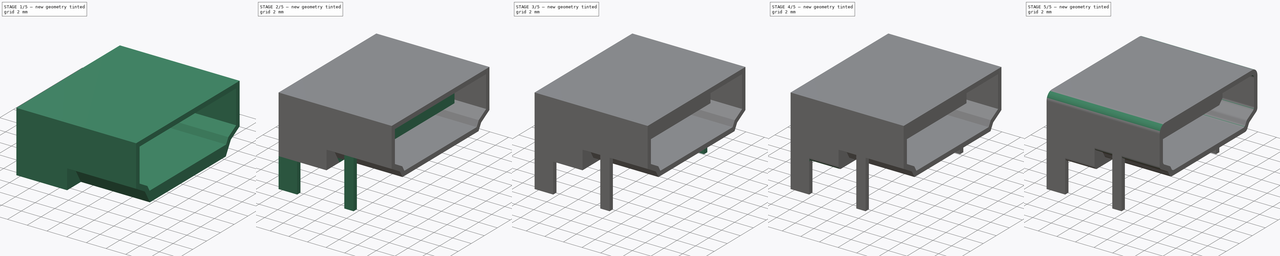
[diagram: build sequence overview — one tinted view per stage of 5, left to right]
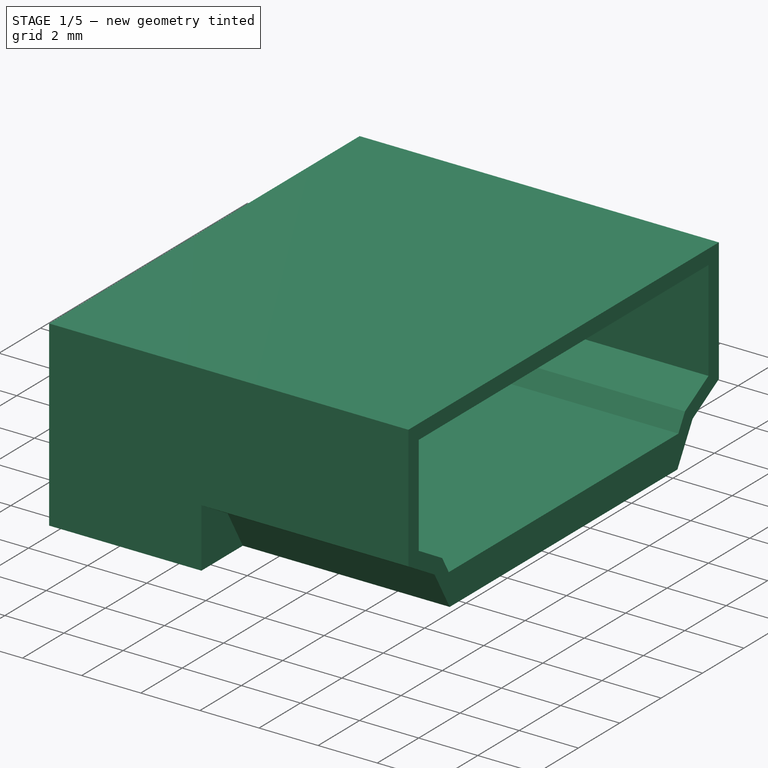
[diagram: stage 1 of 5 — iso view after this stage's code; geometry added in this stage tinted green]
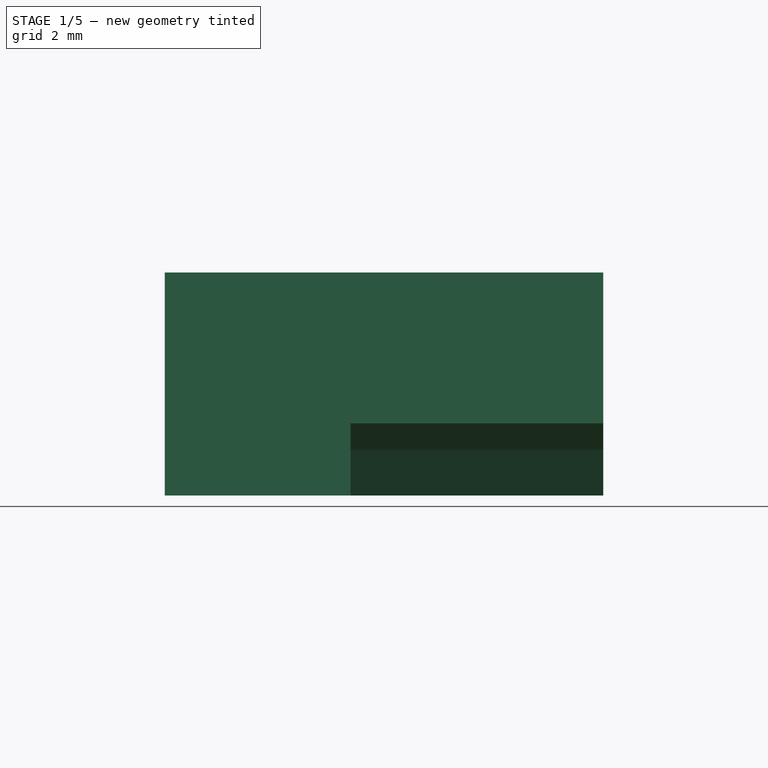
[diagram: stage 1 of 5 — front view after this stage's code; geometry added in this stage tinted green]
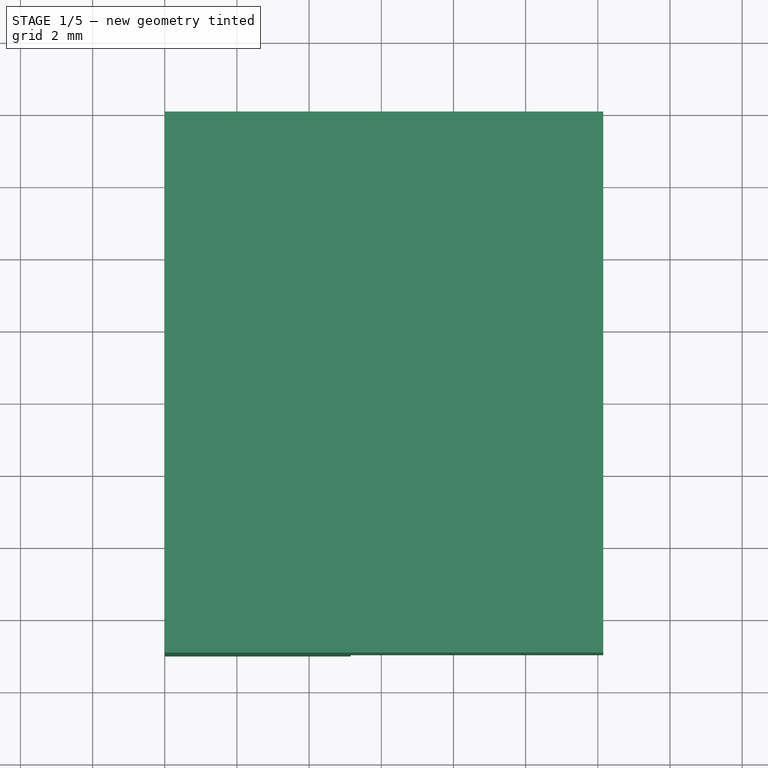
[diagram: stage 1 of 5 — top view after this stage's code; geometry added in this stage tinted green]
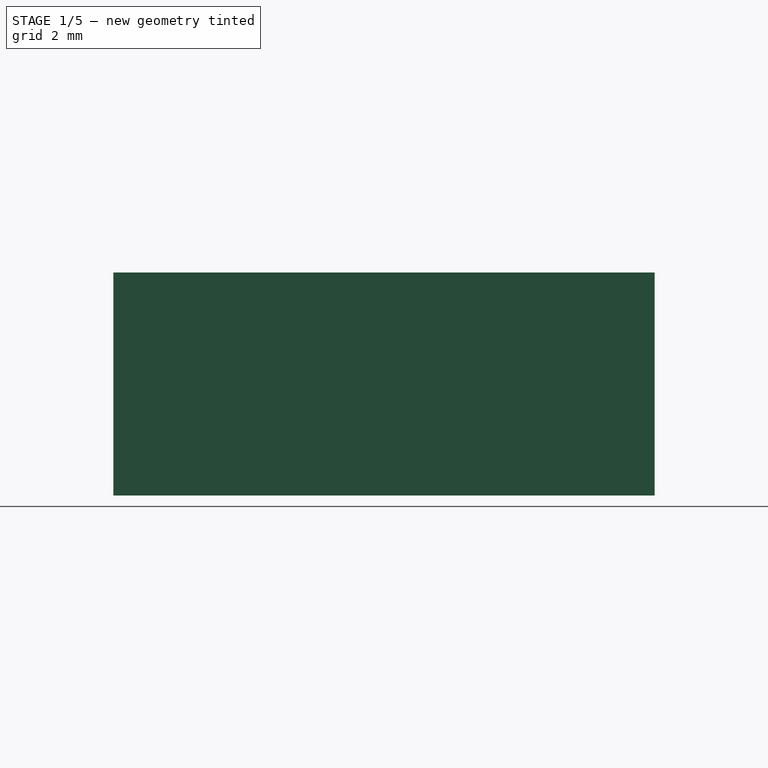
[diagram: stage 1 of 5 — right view after this stage's code; geometry added in this stage tinted green]
FCSTD DOCUMENT  (FreeCAD 0.14R3702 (Git))
Label: hdmi-connector
License: CC-BY 3.0
LicenseURL: http://creativecommons.org/licenses/by/3.0/
objects: Sketcher::SketchObject×10, PartDesign::Pad×5, PartDesign::Pocket×5, PartDesign::Fillet×4, PartDesign::LinearPattern×2, App::DocumentObjectGroup×2, Part::MultiFuse×1, PartDesign::Chamfer×1
note: 38 computed .brp shape members not serialized (recipe doc carries the construction recipe); baked Part::Feature solids carry a one-line shape summary decoded from their .brp

FEATURE [Sketcher::SketchObject] Sketch
  sketch-geometry (4):
    g0: LineSegment StartX=0 StartY=0 StartZ=0 EndX=12.15 EndY=0 EndZ=0
    g1: LineSegment StartX=12.15 StartY=0 StartZ=0 EndX=12.15 EndY=-15 EndZ=0
    g2: LineSegment StartX=12.15 StartY=-15 StartZ=0 EndX=0 EndY=-15 EndZ=0
    g3: LineSegment StartX=0 StartY=-15 StartZ=0 EndX=0 EndY=0 EndZ=0
  constraints (11):
    c: Coincident(g0,g1)
    c: Coincident(g1,g2)
    c: Coincident(g2,g3)
    c: Coincident(g3,g0)
    c: Horizontal(g0)
    c: Horizontal(g2)
    c: Vertical(g1)
    c: Vertical(g3)
    c: Coincident(g0,g-1)
    c: DistanceX(g-1,g0) = 12.15
    c: DistanceY(g0,g1) = -15
FEATURE [PartDesign::Pad] Pad
  Length = 6.18
  Length2 = 100
  Sketch = -> Sketch
  Type = 0
FEATURE [Sketcher::SketchObject] Sketch001
  Placement = pos=(12.15,0,0) rot=(0.57735,0.57735,0.57735;2.0944rad)
  Support = -> Pad [Face2]
  sketch-geometry (4):
    g0: LineSegment StartX=-2 StartY=0 StartZ=0 EndX=-1.26795 EndY=1.26795 EndZ=0
    g1: LineSegment StartX=-1.26795 StartY=1.26795 StartZ=0 EndX=0 EndY=2 EndZ=0
    g2: LineSegment StartX=0 StartY=2 StartZ=0 EndX=0 EndY=0 EndZ=0
    g3: LineSegment StartX=0 StartY=0 StartZ=0 EndX=-2 EndY=0 EndZ=0
  constraints (11):
    c: PointOnObject(g0,g-1)
    c: Coincident(g0,g1)
    c: Coincident(g1,g2)
    c: Coincident(g2,g-1)
    c: Vertical(g2)
    c: Coincident(g2,g3)
    c: Coincident(g3,g0)
    c: Angle(g3,g0) = 1.0472
    c: DistanceY(g-1,g1) = 2
    c: Angle(g1,g2) = 1.0472
    c: Equal(g0,g1)
FEATURE [PartDesign::Pocket] Pocket
  Length = 7
  Sketch = -> Sketch001
  Type = 0
FEATURE [Sketcher::SketchObject] Sketch002
  ExternalGeometry = -> [Pocket]
  Placement = pos=(12.15,0,0) rot=(0.57735,0.57735,0.57735;2.0944rad)
  Support = -> Pocket [Face5]
  sketch-geometry (4):
    g0: LineSegment StartX=-15 StartY=2 StartZ=0 EndX=-15 EndY=0 EndZ=0
    g1: LineSegment StartX=-15 StartY=0 StartZ=0 EndX=-13 EndY=0 EndZ=0
    g2: LineSegment StartX=-13 StartY=0 StartZ=0 EndX=-13.7321 EndY=1.26795 EndZ=0
    g3: LineSegment StartX=-13.7321 StartY=1.26795 StartZ=0 EndX=-15 EndY=2 EndZ=0
  constraints (11):
    c: Vertical(g0)
    c: Coincident(g0,g1)
    c: Horizontal(g1)
    c: Coincident(g1,g2)
    c: Coincident(g2,g3)
    c: Coincident(g3,g0)
    c: Angle(g0,g3) = 1.0472
    c: Angle(g2,g1) = 1.0472
    c: Equal(g2,g3)
    c: Coincident(g0,g-3)
    c: DistanceY(g0,g0) = -2
FEATURE [PartDesign::Pocket] Pocket001
  Length = 7
  Sketch = -> Sketch002
  Type = 0
FEATURE [Sketcher::SketchObject] Sketch003
  ExternalGeometry = -> [Pocket001]
  Placement = pos=(12.15,0,0) rot=(0.57735,0.57735,0.57735;2.0944rad)
  Support = -> Pocket001 [Face5]
  sketch-geometry (8):
    g0: LineSegment StartX=-14.5 StartY=2.28868 StartZ=0 EndX=-14.5 EndY=5.68 EndZ=0
    g1: LineSegment StartX=-14.5 StartY=5.68 StartZ=0 EndX=-0.5 EndY=5.68 EndZ=0
    g2: LineSegment StartX=-0.5 StartY=5.68 StartZ=0 EndX=-0.5 EndY=2.28868 EndZ=0
    g3: LineSegment StartX=-0.5 StartY=2.28868 StartZ=0 EndX=-1.63397 EndY=1.63397 EndZ=0
    g4: LineSegment StartX=-1.63397 StartY=1.63397 StartZ=0 EndX=-1.95381 EndY=1.08 EndZ=0
    g5: LineSegment StartX=-1.95381 StartY=1.08 StartZ=0 EndX=-13.0462 EndY=1.08 EndZ=0
    g6: LineSegment StartX=-13.0462 StartY=1.08 StartZ=0 EndX=-13.366 EndY=1.63397 EndZ=0
    g7: LineSegment StartX=-13.366 StartY=1.63397 StartZ=0 EndX=-14.5 EndY=2.28868 EndZ=0
  constraints (24):
    c: Vertical(g0)
    c: Coincident(g0,g1)
    c: Horizontal(g1)
    c: Coincident(g1,g2)
    c: Vertical(g2)
    c: Coincident(g2,g3)
    c: Coincident(g3,g4)
    c: Coincident(g4,g5)
    c: Horizontal(g5)
    c: Coincident(g5,g6)
    c: Coincident(g6,g7)
    c: Coincident(g7,g0)
    c: DistanceX(g0,g1) = 14
    c: DistanceY(g4,g1) = 4.6
    c: Parallel(g7,g-4)
    c: Parallel(g-5,g6)
    c: Equal(g7,g3)
    c: Equal(g6,g4)
    c: DistanceX(g0,g-3) = -0.5
    c: Distance(g-5,g7) = 0.5
    c: Parallel(g3,g-6)
    c: Distance(g6,g-5) = 0.5
    c: Parallel(g4,g-7)
    c: DistanceY(g0,g-3) = 0.5
FEATURE [PartDesign::Pocket] Pocket002
  Length = 7
  Sketch = -> Sketch003
  Type = 0
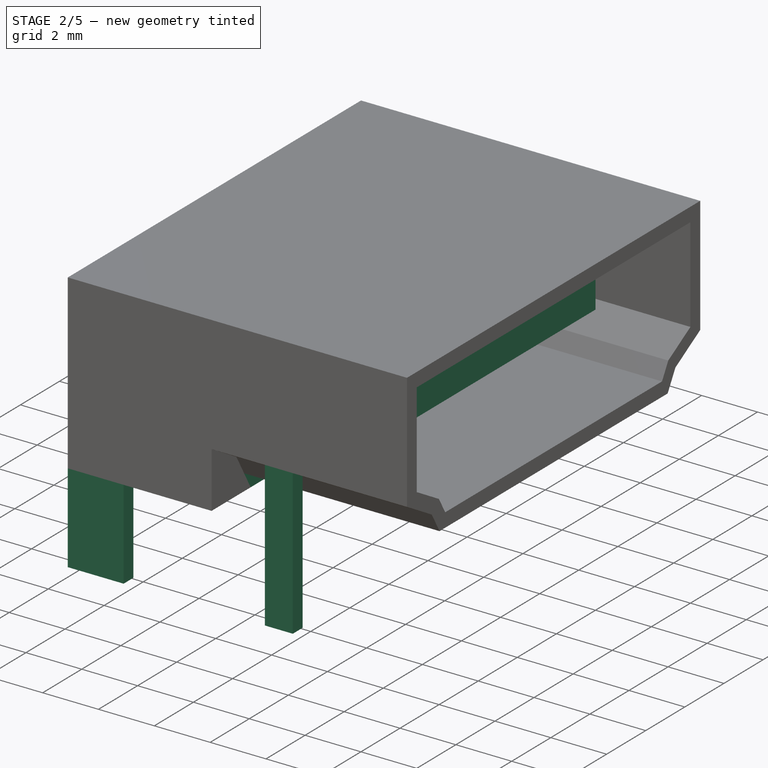
[diagram: stage 2 of 5 — iso view after this stage's code; geometry added in this stage tinted green]
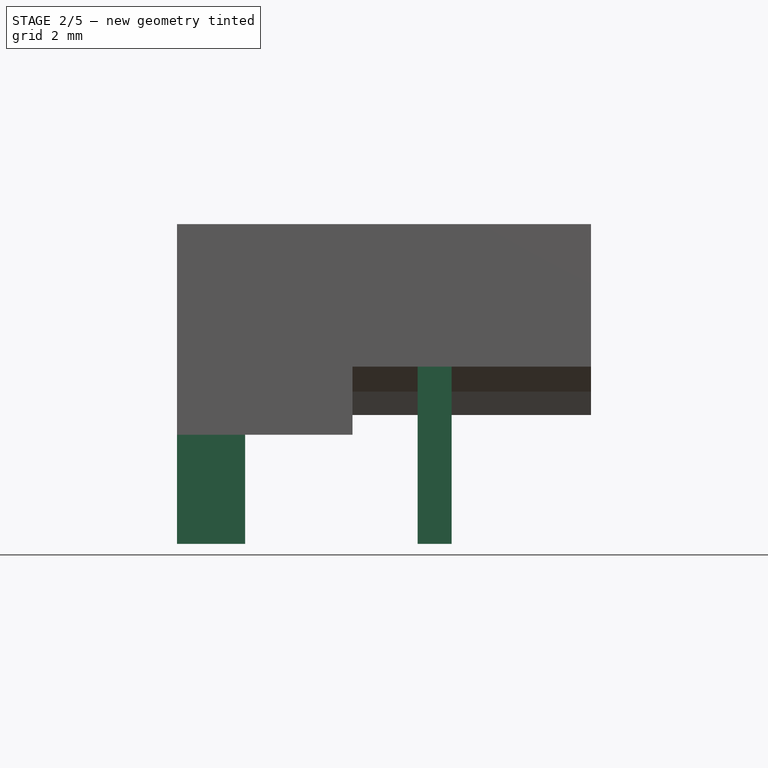
[diagram: stage 2 of 5 — front view after this stage's code; geometry added in this stage tinted green]
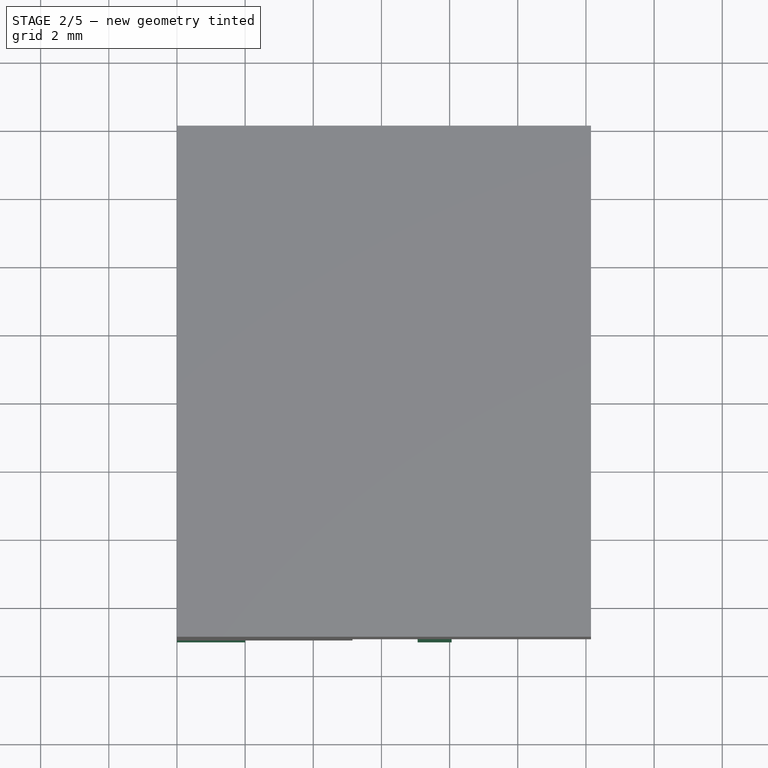
[diagram: stage 2 of 5 — top view after this stage's code; geometry added in this stage tinted green]
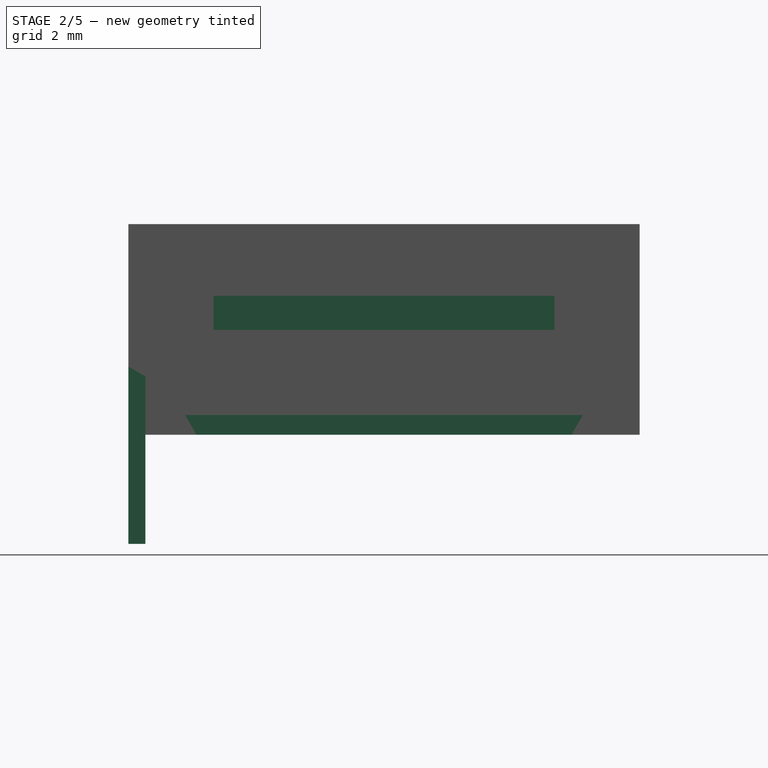
[diagram: stage 2 of 5 — right view after this stage's code; geometry added in this stage tinted green]
FEATURE [Sketcher::SketchObject] Sketch004
  ExternalGeometry = -> [Pocket002]
  Placement = pos=(12.15,0,0) rot=(0.57735,0.57735,0.57735;2.0944rad)
  Support = -> Pocket002 [Face5]
  sketch-geometry (4):
    g0: LineSegment StartX=0 StartY=0 StartZ=0 EndX=-15 EndY=0 EndZ=0
    g1: LineSegment StartX=-15 StartY=0 StartZ=0 EndX=-15 EndY=0.58 EndZ=0
    g2: LineSegment StartX=-15 StartY=0.58 StartZ=0 EndX=0 EndY=0.58 EndZ=0
    g3: LineSegment StartX=0 StartY=0.58 StartZ=0 EndX=0 EndY=0 EndZ=0
  constraints (11):
    c: Coincident(g0,g1)
    c: Coincident(g1,g2)
    c: Coincident(g2,g3)
    c: Coincident(g3,g0)
    c: Horizontal(g0)
    c: Horizontal(g2)
    c: Vertical(g1)
    c: Vertical(g3)
    c: Coincident(g0,g-1)
    c: Coincident(g-4,g0)
    c: Distance(g-3,g2) = 0.5
FEATURE [PartDesign::Pocket] Pocket003
  Length = 7
  Sketch = -> Sketch004
  Type = 0
FEATURE [Sketcher::SketchObject] Sketch005
  ExternalGeometry = -> [Pocket003]
  Placement = pos=(5.15,0,0) rot=(0.57735,0.57735,0.57735;2.0944rad)
  Support = -> Pocket003 [Face25]
  sketch-geometry (5):
    g0: LineSegment StartX=-12.5 StartY=4.08 StartZ=0 EndX=-2.5 EndY=4.08 EndZ=0
    g1: LineSegment StartX=-2.5 StartY=4.08 StartZ=0 EndX=-2.5 EndY=3.08 EndZ=0
    g2: LineSegment StartX=-2.5 StartY=3.08 StartZ=0 EndX=-12.5 EndY=3.08 EndZ=0
    g3: LineSegment StartX=-12.5 StartY=3.08 StartZ=0 EndX=-12.5 EndY=4.08 EndZ=0
    g4: LineSegment [constr] StartX=-7.5 StartY=3.08 StartZ=0 EndX=-7.5 EndY=0.58 EndZ=0
  constraints (16):
    c: Coincident(g0,g1)
    c: Coincident(g1,g2)
    c: Coincident(g2,g3)
    c: Coincident(g3,g0)
    c: Horizontal(g0)
    c: Horizontal(g2)
    c: Vertical(g1)
    c: Vertical(g3)
    c: DistanceY(g0,g1) = -1
    c: DistanceY(g0,g-3) = -3.5
    c: DistanceX(g0,g0) = 10
    c: PointOnObject(g4,g2)
    c: PointOnObject(g4,g-3)
    c: Vertical(g4)
    c: Symmetric(g2,g1,g4)
    c: Symmetric(g-3,g-3,g4)
FEATURE [PartDesign::Pad] Pad001
  Length = 5
  Length2 = 100
  Sketch = -> Sketch005
  Type = 0
FEATURE [Sketcher::SketchObject] Sketch006
  ExternalGeometry = -> [Pad001]
  Placement = pos=(0,-15,0) rot=(1,0,0;1.5708rad)
  Support = -> Pad001 [Face11]
  sketch-geometry (10):
    g0: LineSegment StartX=0 StartY=0 StartZ=0 EndX=2 EndY=0 EndZ=0
    g1: LineSegment StartX=2 StartY=0 StartZ=0 EndX=2 EndY=-3.2 EndZ=0
    g2: LineSegment StartX=2 StartY=-3.2 StartZ=0 EndX=0 EndY=-3.2 EndZ=0
    g3: LineSegment StartX=0 StartY=-3.2 StartZ=0 EndX=0 EndY=0 EndZ=0
    g4: LineSegment StartX=8.06 StartY=2 StartZ=0 EndX=7.06 EndY=2 EndZ=0
    g5: LineSegment StartX=7.06 StartY=2 StartZ=0 EndX=7.06 EndY=-3.2 EndZ=0
    g6: LineSegment StartX=7.06 StartY=-3.2 StartZ=0 EndX=8.06 EndY=-3.2 EndZ=0
    g7: LineSegment StartX=8.06 StartY=-3.2 StartZ=0 EndX=8.06 EndY=2 EndZ=0
    g8: GeomPoint [constr] X=1 Y=-3.2 Z=0
    g9: GeomPoint [constr] X=7.56 Y=-3.2 Z=0
  constraints (27):
    c: Coincident(g0,g1)
    c: Coincident(g1,g2)
    c: Coincident(g2,g3)
    c: Coincident(g3,g0)
    c: Horizontal(g0)
    c: Horizontal(g2)
    c: Vertical(g1)
    c: Vertical(g3)
    c: Coincident(g0,g-1)
    c: Coincident(g4,g5)
    c: Coincident(g5,g6)
    c: Coincident(g6,g7)
    c: Coincident(g7,g4)
    c: Horizontal(g4)
    c: Horizontal(g6)
    c: Vertical(g5)
    c: Vertical(g7)
    c: PointOnObject(g4,g-3)
    c: PointOnObject(g8,g2)
    c: PointOnObject(g9,g6)
    c: Symmetric(g1,g2,g8)
    c: Symmetric(g6,g5,g9)
    c: DistanceX(g9,g-3) = 4.59
    c: DistanceX(g5,g6) = 1
    c: DistanceX(g2,g1) = 2
    c: DistanceY(g-1,g2) = -3.2
    c: DistanceY(g5,g0) = 3.2
FEATURE [PartDesign::Pad] Pad002
  Length = 0.5
  Length2 = 100
  Reversed = true
  Sketch = -> Sketch006
  Type = 0
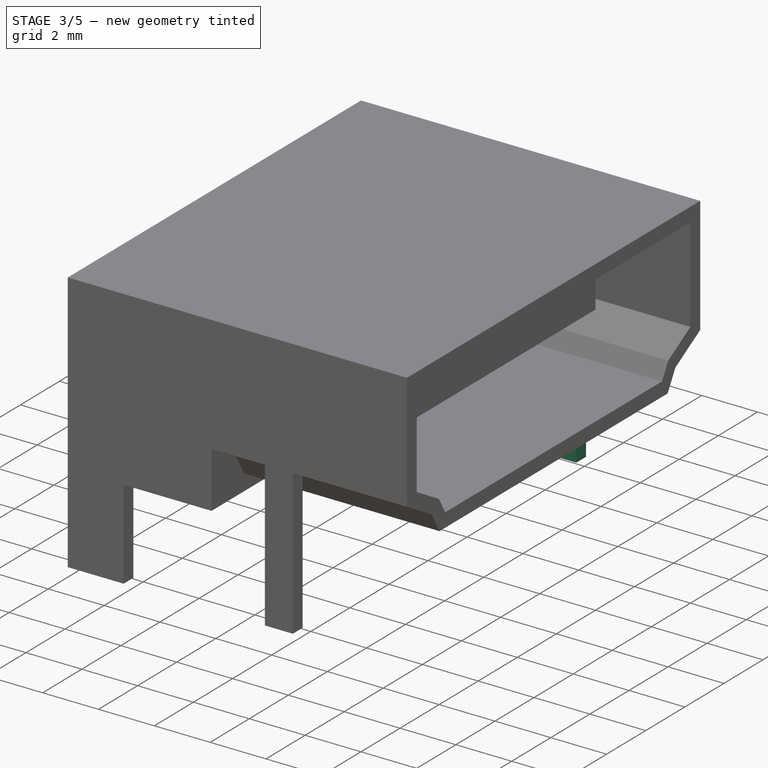
[diagram: stage 3 of 5 — iso view after this stage's code; geometry added in this stage tinted green]
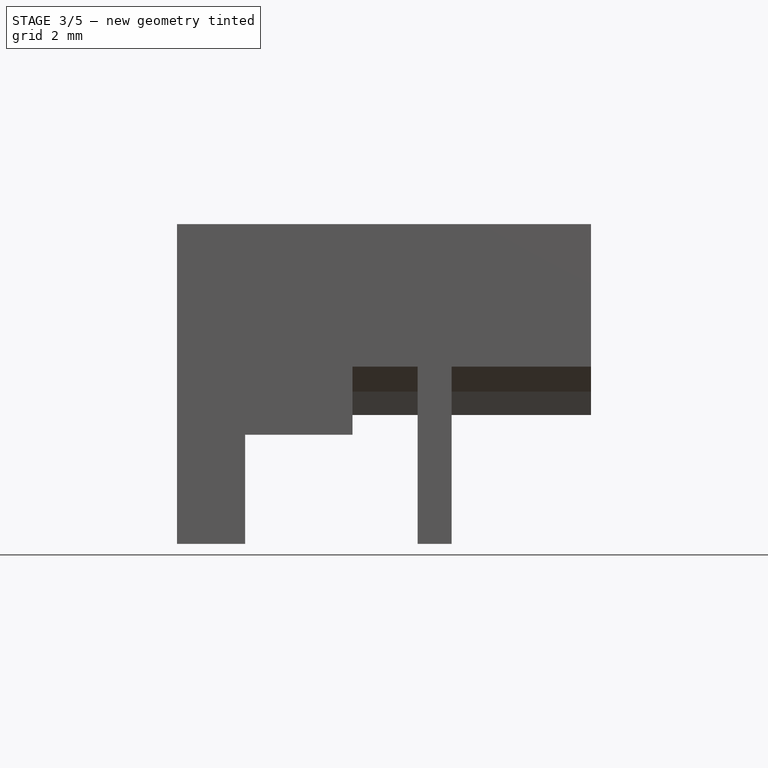
[diagram: stage 3 of 5 — front view after this stage's code; geometry added in this stage tinted green]
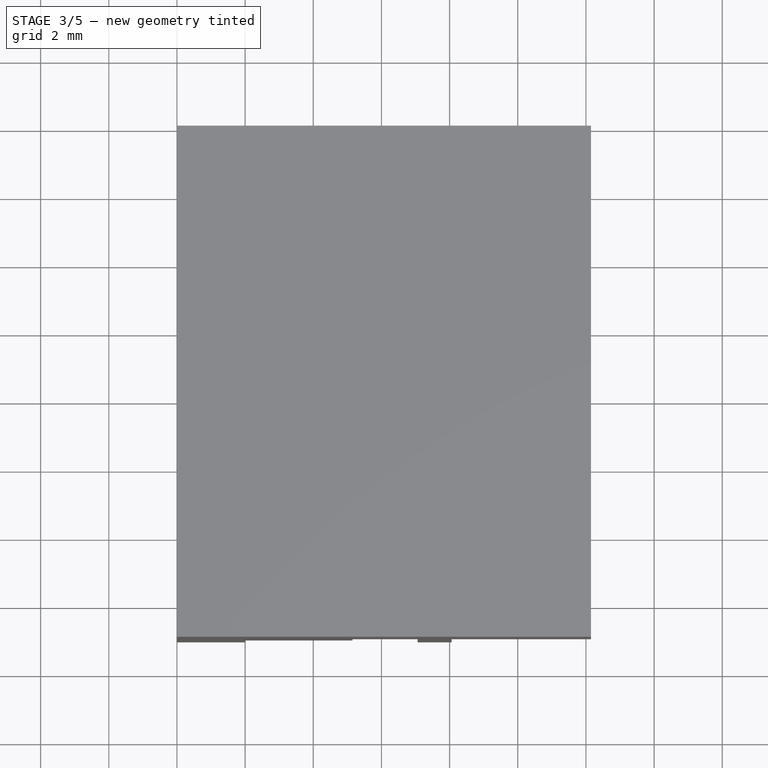
[diagram: stage 3 of 5 — top view after this stage's code; geometry added in this stage tinted green]
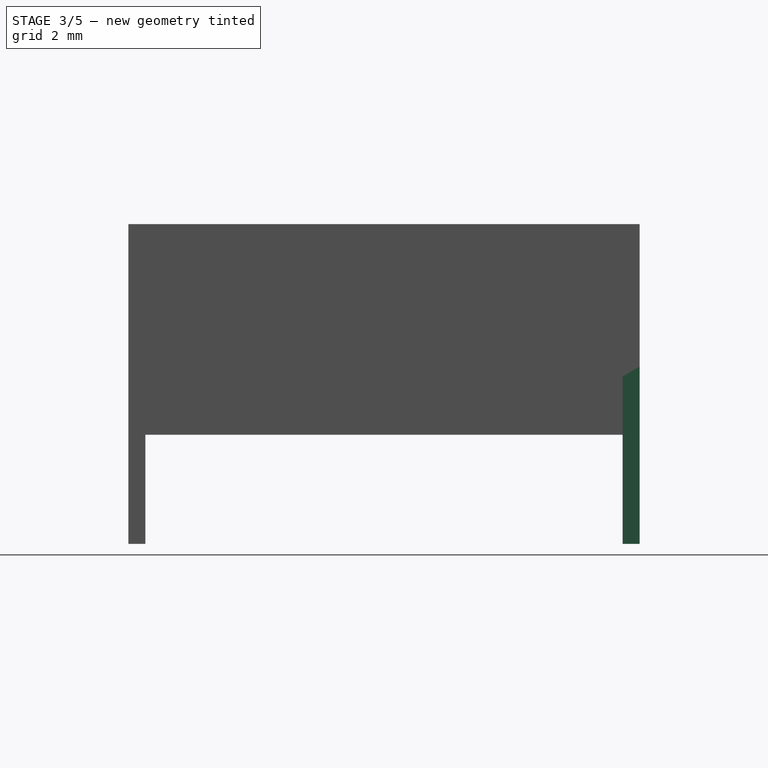
[diagram: stage 3 of 5 — right view after this stage's code; geometry added in this stage tinted green]
FEATURE [Sketcher::SketchObject] Sketch007
  ExternalGeometry = -> [Pad002]
  Placement = pos=(0,0,0) rot=(0,0.707107,0.707107;3.14159rad)
  Support = -> Pad002 [Face1]
  sketch-geometry (8):
    g0: LineSegment StartX=0 StartY=0 StartZ=0 EndX=-2 EndY=0 EndZ=0
    g1: LineSegment StartX=-2 StartY=0 StartZ=0 EndX=-2 EndY=-3.2 EndZ=0
    g2: LineSegment StartX=-2 StartY=-3.2 StartZ=0 EndX=0 EndY=-3.2 EndZ=0
    g3: LineSegment StartX=0 StartY=-3.2 StartZ=0 EndX=0 EndY=0 EndZ=0
    g4: LineSegment StartX=-8.06 StartY=2 StartZ=0 EndX=-7.06 EndY=2 EndZ=0
    g5: LineSegment StartX=-7.06 StartY=2 StartZ=0 EndX=-7.06 EndY=-3.2 EndZ=0
    g6: LineSegment StartX=-7.06 StartY=-3.2 StartZ=0 EndX=-8.06 EndY=-3.2 EndZ=0
    g7: LineSegment StartX=-8.06 StartY=-3.2 StartZ=0 EndX=-8.06 EndY=2 EndZ=0
  constraints (21):
    c: Coincident(g0,g1)
    c: Coincident(g1,g2)
    c: Coincident(g2,g3)
    c: Coincident(g3,g0)
    c: Horizontal(g0)
    c: Horizontal(g2)
    c: Vertical(g1)
    c: Vertical(g3)
    c: Coincident(g0,g-1)
    c: Coincident(g4,g5)
    c: Coincident(g5,g6)
    c: Coincident(g6,g7)
    c: Coincident(g7,g4)
    c: Horizontal(g4)
    c: Horizontal(g6)
    c: Vertical(g5)
    c: Vertical(g7)
    c: Coincident(g-5,g6)
    c: PointOnObject(g4,g-4)
    c: Coincident(g-5,g5)
    c: Coincident(g1,g-3)
FEATURE [PartDesign::Pad] Pad003
  Length = 0.5
  Length2 = 100
  Reversed = true
  Sketch = -> Sketch007
  Type = 0
FEATURE [Sketcher::SketchObject] Sketch008
  Placement = pos=(0,0,0) rot=(0.57735,-0.57735,-0.57735;2.0944rad)
  Support = -> Pad003 [Face5]
  sketch-geometry (4):
    g0: LineSegment StartX=1.75 StartY=0 StartZ=0 EndX=13.25 EndY=0 EndZ=0
    g1: LineSegment StartX=13.25 StartY=0 StartZ=0 EndX=13.25 EndY=1.5 EndZ=0
    g2: LineSegment StartX=13.25 StartY=1.5 StartZ=0 EndX=1.75 EndY=1.5 EndZ=0
    g3: LineSegment StartX=1.75 StartY=1.5 StartZ=0 EndX=1.75 EndY=0 EndZ=0
  constraints (12):
    c: Coincident(g0,g1)
    c: Coincident(g1,g2)
    c: Coincident(g2,g3)
    c: Coincident(g3,g0)
    c: Horizontal(g0)
    c: Horizontal(g2)
    c: Vertical(g1)
    c: Vertical(g3)
    c: PointOnObject(g0,g-1)
    c: DistanceX(g2,g1) = 11.5
    c: DistanceX(g-1,g0) = 1.75
    c: DistanceY(g1,g0) = -1.5
FEATURE [PartDesign::Pocket] Pocket004
  Length = 1.5
  Sketch = -> Sketch008
  Type = 0
FEATURE [Sketcher::SketchObject] Sketch009
  ExternalGeometry = -> [Pocket004]
  Placement = pos=(0,0,0) rot=(1,0,0;3.14159rad)
  Support = -> Pocket004 [Face7]
  sketch-geometry (6):
    g0: GeomPoint [constr] X=1.5 Y=7.5 Z=0
    g1: LineSegment StartX=1.5 StartY=7.64 StartZ=0 EndX=0 EndY=7.64 EndZ=0
    g2: LineSegment StartX=0 StartY=7.64 StartZ=0 EndX=0 EndY=7.36 EndZ=0
    g3: LineSegment StartX=0 StartY=7.36 StartZ=0 EndX=1.5 EndY=7.36 EndZ=0
    g4: LineSegment StartX=1.5 StartY=7.36 StartZ=0 EndX=1.5 EndY=7.64 EndZ=0
    g5: GeomPoint [constr] X=1.5 Y=7.5 Z=0
  constraints (15):
    c: PointOnObject(g0,g-3)
    c: Symmetric(g-3,g-3,g0)
    c: Coincident(g1,g2)
    c: Coincident(g2,g3)
    c: Coincident(g3,g4)
    c: Coincident(g4,g1)
    c: Horizontal(g1)
    c: Horizontal(g3)
    c: Vertical(g2)
    c: Vertical(g4)
    c: PointOnObject(g5,g4)
    c: Symmetric(g1,g3,g5)
    c: Coincident(g5,g0)
    c: DistanceX(g2,g3) = 1.5
    c: DistanceY(g2,g1) = 0.28
FEATURE [PartDesign::Pad] Pad004
  Length = 0.1
  Length2 = 100
  Reversed = true
  Sketch = -> Sketch009
  Type = 0
FEATURE [App::DocumentObjectGroup] Groupe  label="pins"
  Group = -> [Pad002,Pad004,LinearPattern001]
FEATURE [App::DocumentObjectGroup] Groupe001  label="Body"
  Group = -> [Pad,Pocket,Pocket001,Pocket002,Pocket003,Pad001,Pad003,Pocket004]
FEATURE [PartDesign::LinearPattern] LinearPattern
  Direction = -> Sketch009 [V_Axis]
  Length = 4.5
  Occurrences = 10
  Originals = -> [Pad004]
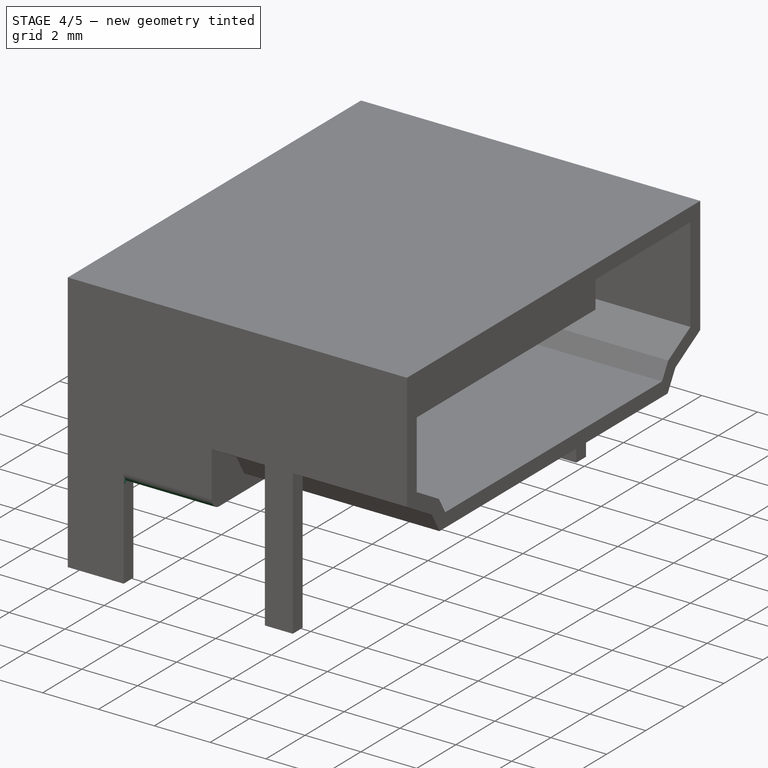
[diagram: stage 4 of 5 — iso view after this stage's code; geometry added in this stage tinted green]
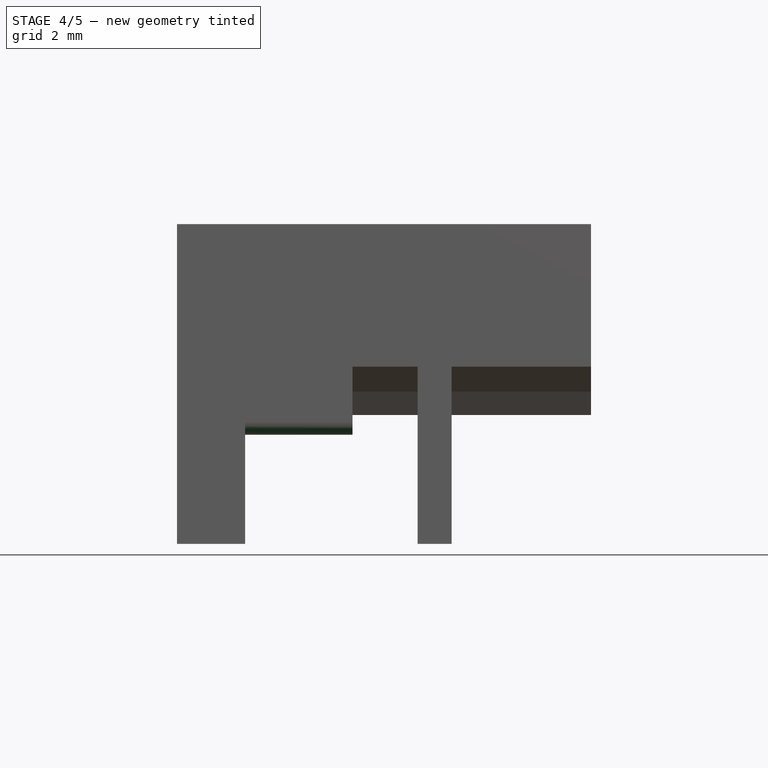
[diagram: stage 4 of 5 — front view after this stage's code; geometry added in this stage tinted green]
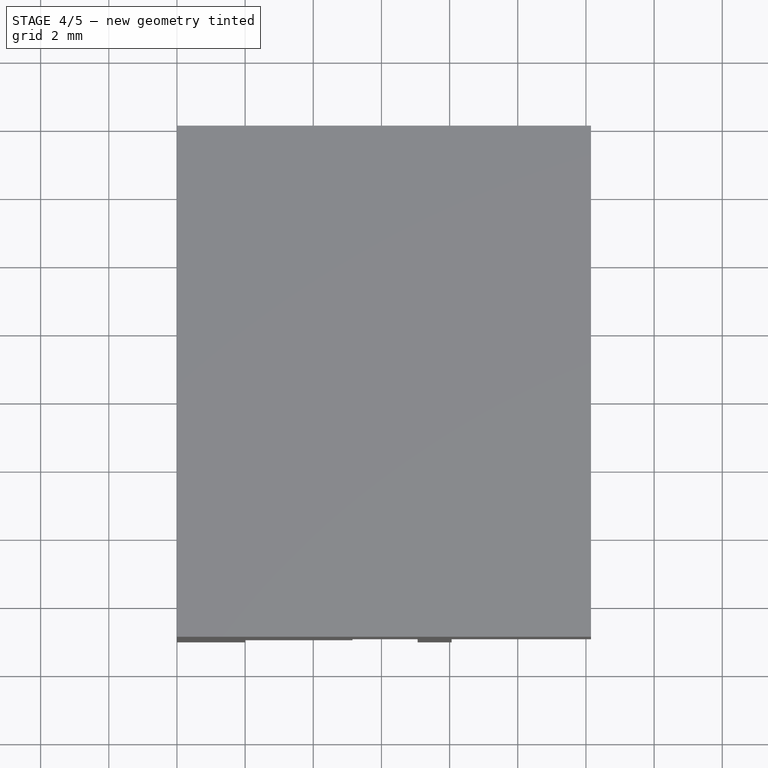
[diagram: stage 4 of 5 — top view after this stage's code; geometry added in this stage tinted green]
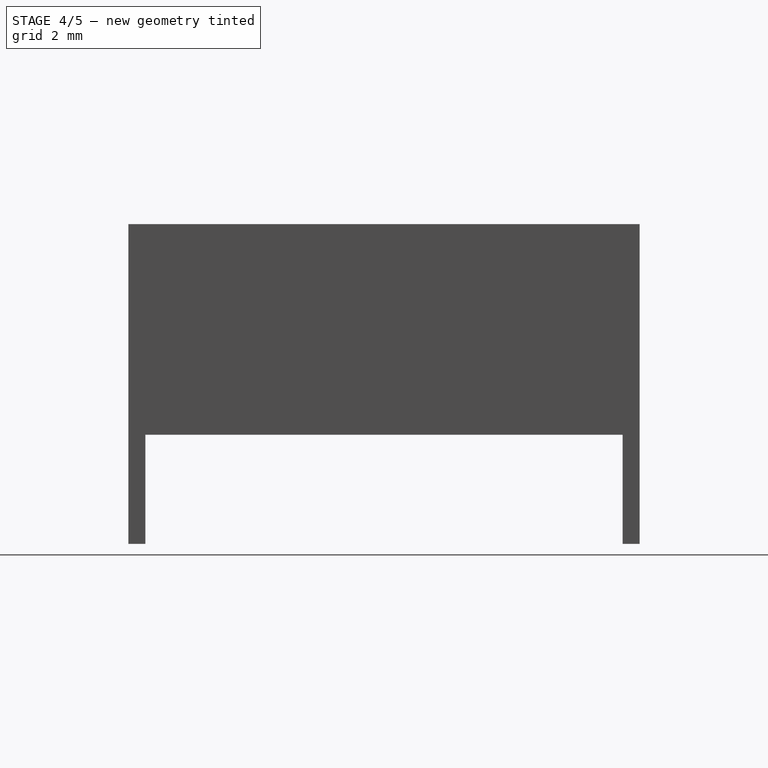
[diagram: stage 4 of 5 — right view after this stage's code; geometry added in this stage tinted green]
FEATURE [PartDesign::LinearPattern] LinearPattern001
  Direction = -> Sketch009 [V_Axis]
  Length = 4.5
  Occurrences = 10
  Originals = -> [Pad004]
  Reversed = true
FEATURE [Part::MultiFuse] Fusion
  Shapes = -> [LinearPattern001,LinearPattern]
FEATURE [PartDesign::Fillet] Fillet
  Base = -> Fusion [Edge98,Edge90]
  Radius = 0.4
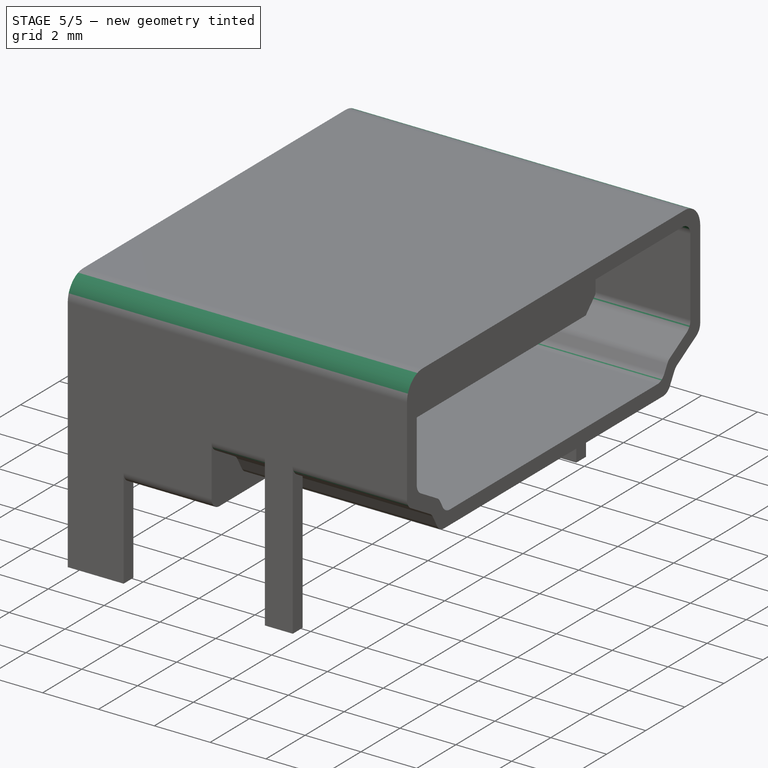
[diagram: stage 5 of 5 — iso view after this stage's code; geometry added in this stage tinted green]
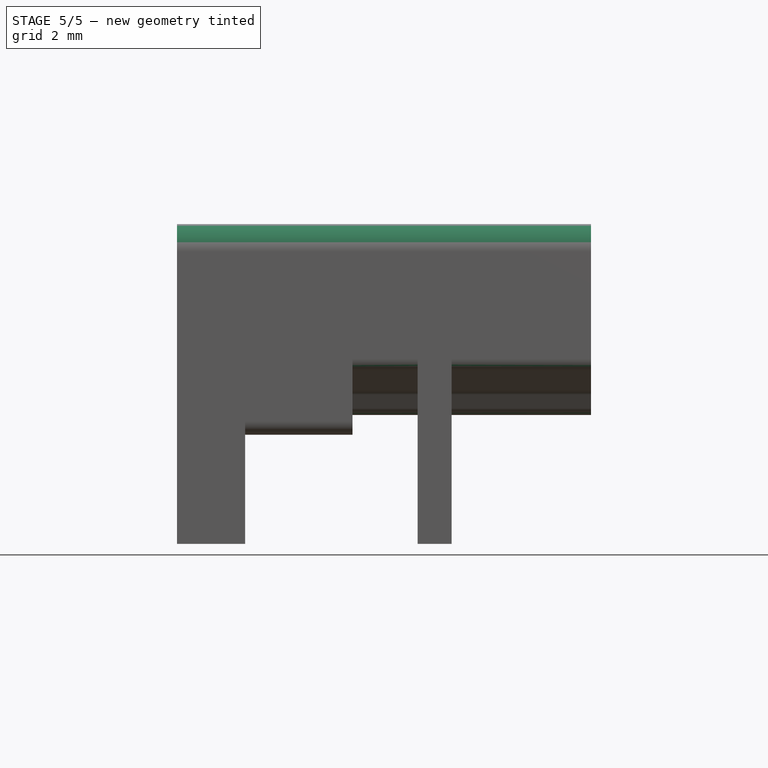
[diagram: stage 5 of 5 — front view after this stage's code; geometry added in this stage tinted green]
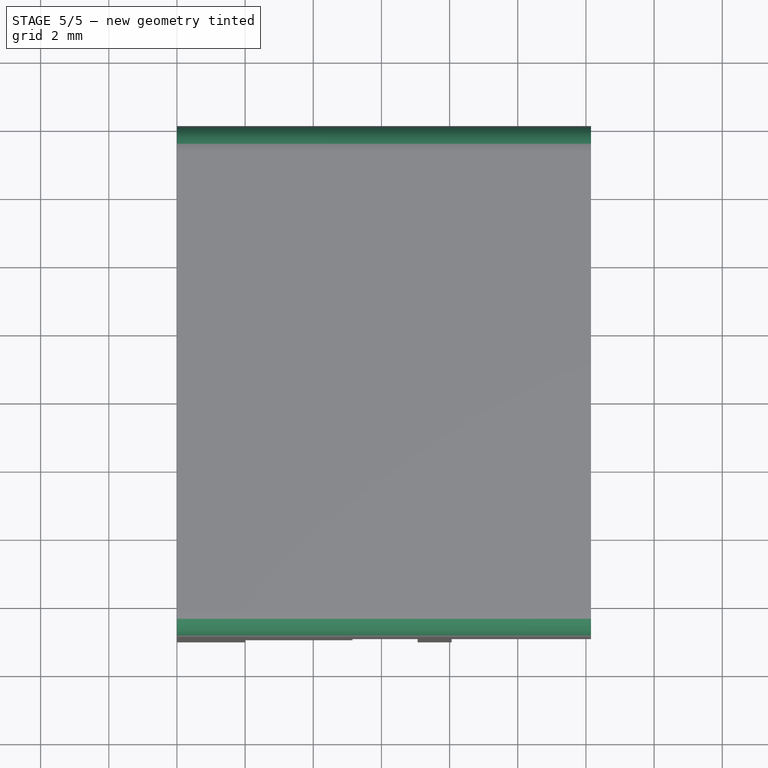
[diagram: stage 5 of 5 — top view after this stage's code; geometry added in this stage tinted green]
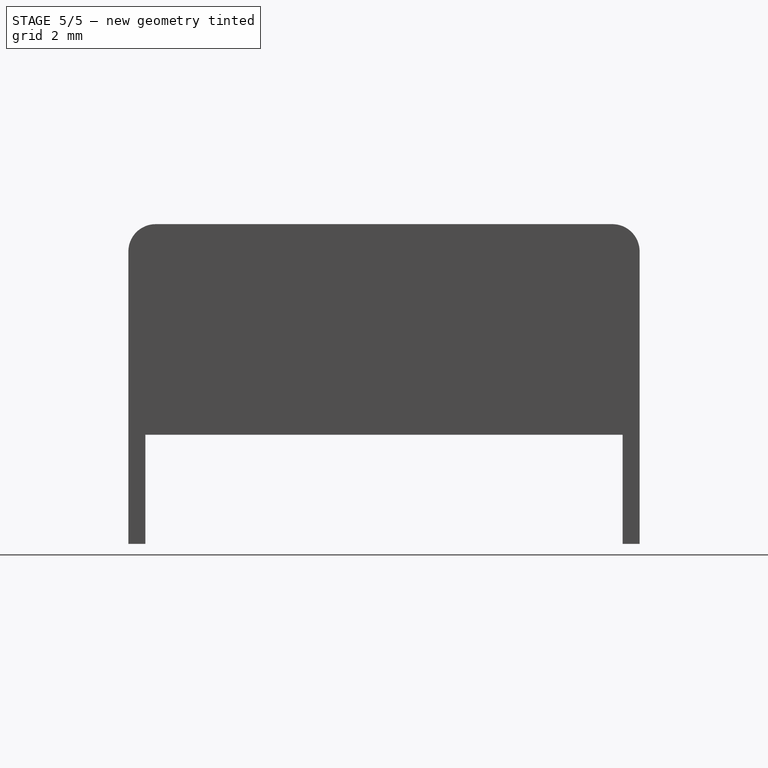
[diagram: stage 5 of 5 — right view after this stage's code; geometry added in this stage tinted green]
FEATURE [PartDesign::Fillet] Fillet001
  Base = -> Fillet [Edge228,Edge347,Edge223,Edge220,Edge229,Edge329,Edge209,Edge206,Edge362,Edge366,Edge370,Edge359,Edge361,Edge365]
  Radius = 0.4
FEATURE [PartDesign::Fillet] Fillet002
  Base = -> Fillet001 [Edge302,Edge307]
  Radius = 0.4
FEATURE [PartDesign::Fillet] Fillet003
  Base = -> Fillet002 [Edge106,Edge94]
  Radius = 0.8
FEATURE [PartDesign::Chamfer] Chamfer
  Base = -> Fillet003 [Edge237,Edge240]
  Size = 0.5
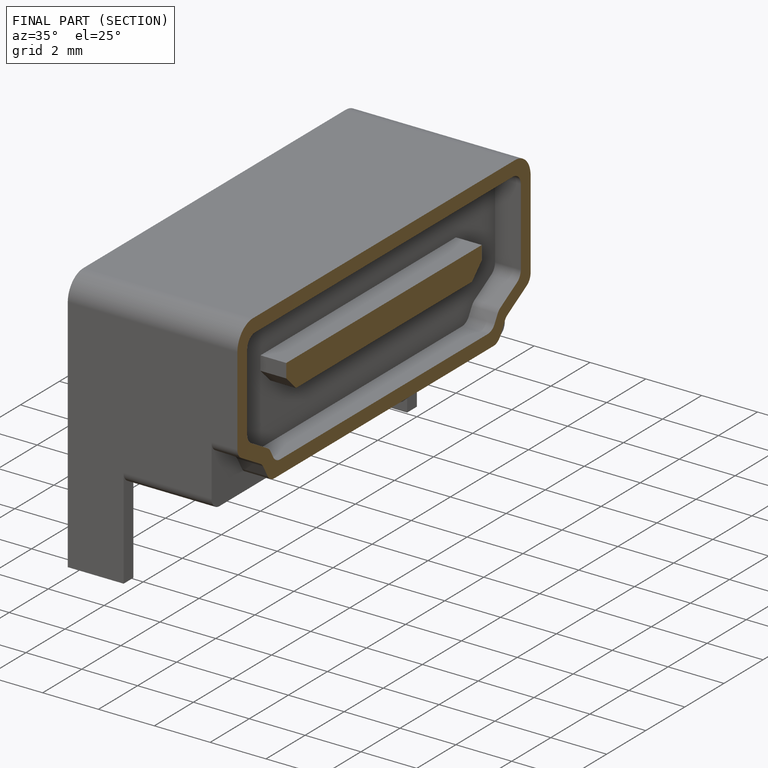
[diagram: finished part — half-section view (interior)]
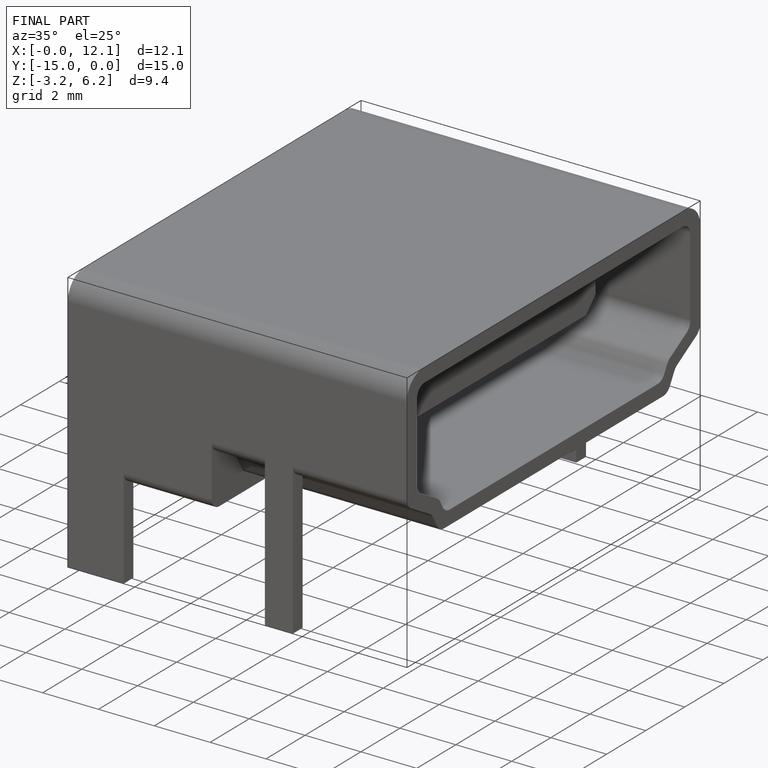
[diagram: finished part — iso view with bounding-box wireframe]
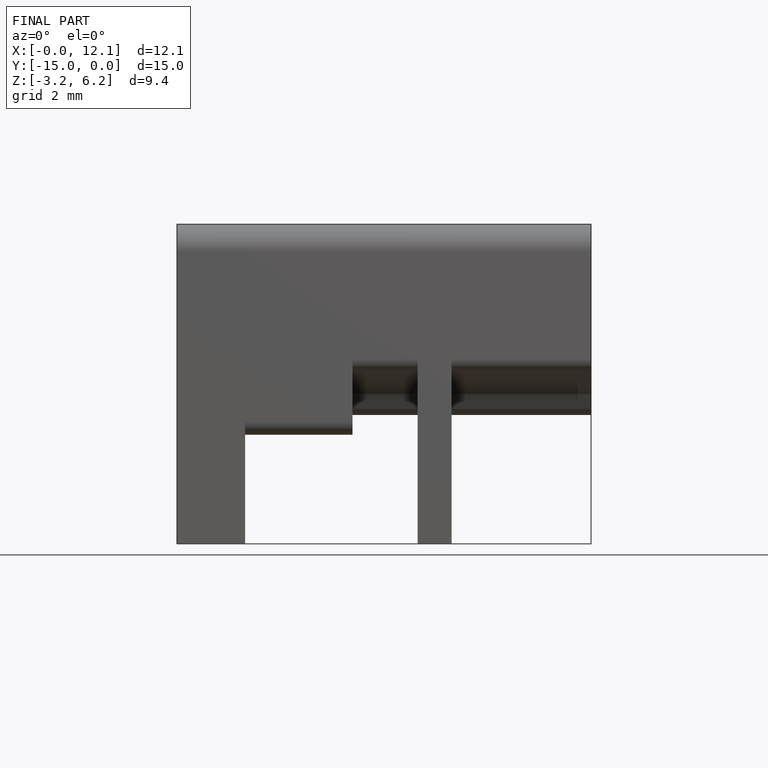
[diagram: finished part — front view with bounding-box wireframe]
